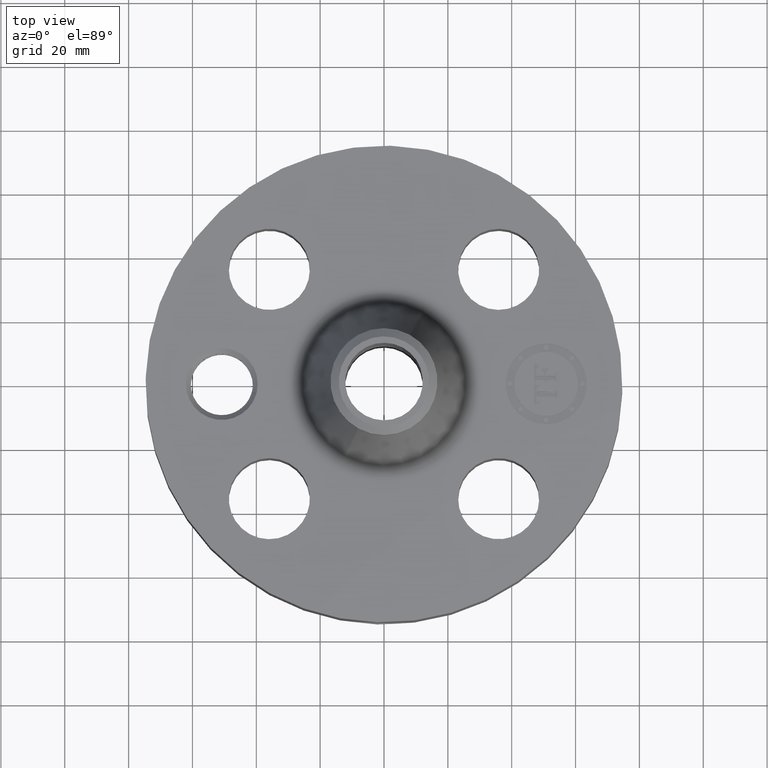
[diagram: clean part render]
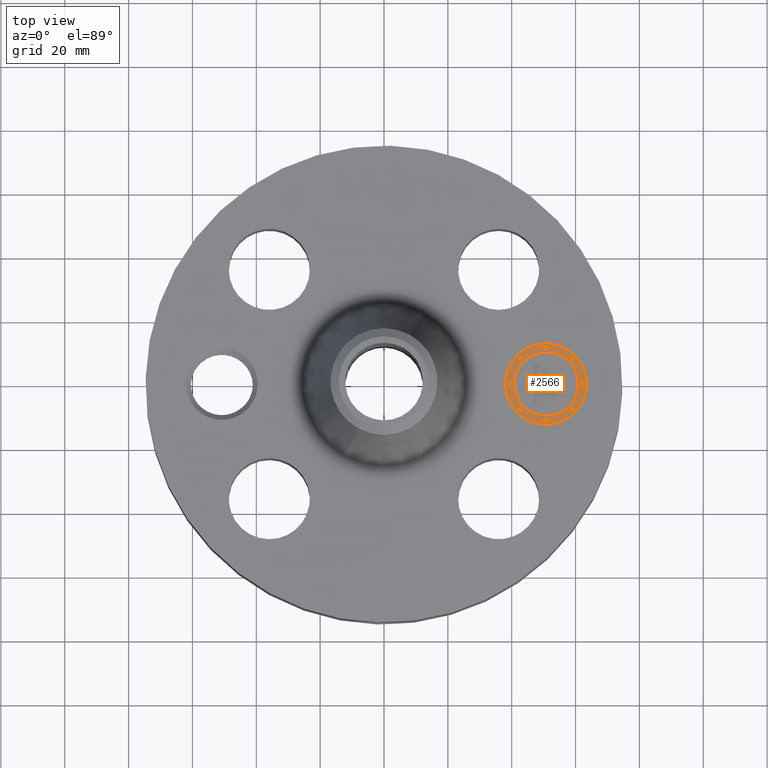
[diagram: same view with one face highlighted and labeled with its STEP entity id]
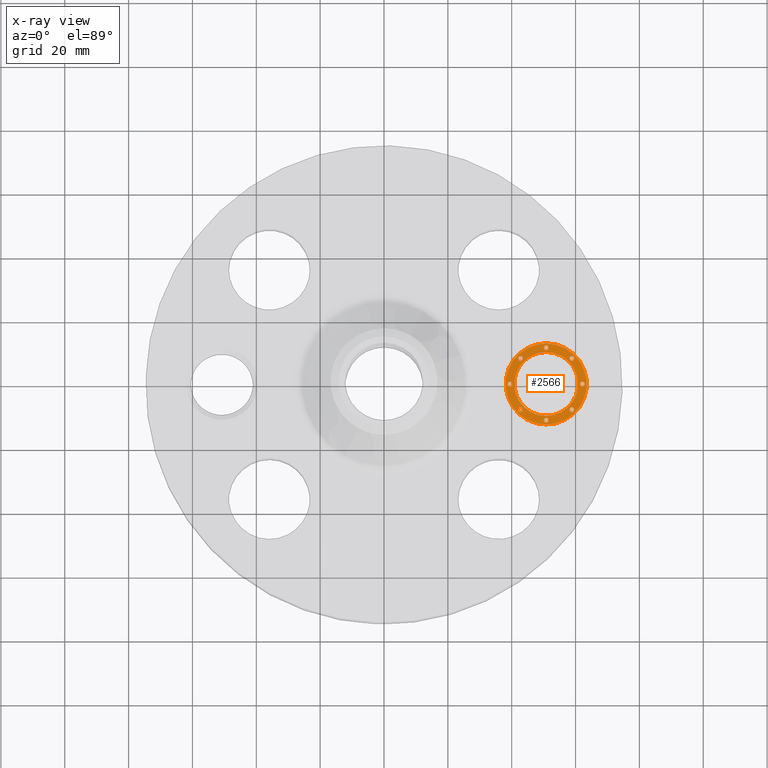
[diagram: x-ray of the same camera — body ghosted, the highlighted face saturated]
A machine part, top view. The second image highlights one B-rep face of the part: STEP entity #2566.
The next image is the same camera in x-ray: the body ghosted, the highlighted face saturated — about 0% of this face is hidden behind the body in this view.
In plain terms, the highlighted planar face has unit normal (0, 0, 1).
Its self-contained STEP definition (entity closure, byte-faithful):
#1811=AXIS2_PLACEMENT_3D('Circle Axis2P3D',#1809,#1810,$) ;
#1838=AXIS2_PLACEMENT_3D('Circle Axis2P3D',#1836,#1837,$) ;
#2398=AXIS2_PLACEMENT_3D('Plane Axis2P3D',#2395,#2396,#2397) ;
#2406=AXIS2_PLACEMENT_3D('Circle Axis2P3D',#2404,#2405,$) ;
#2415=AXIS2_PLACEMENT_3D('Circle Axis2P3D',#2413,#2414,$) ;
#2424=AXIS2_PLACEMENT_3D('Circle Axis2P3D',#2422,#2423,$) ;
#2433=AXIS2_PLACEMENT_3D('Circle Axis2P3D',#2431,#2432,$) ;
#2442=AXIS2_PLACEMENT_3D('Circle Axis2P3D',#2440,#2441,$) ;
#2451=AXIS2_PLACEMENT_3D('Circle Axis2P3D',#2449,#2450,$) ;
#2460=AXIS2_PLACEMENT_3D('Circle Axis2P3D',#2458,#2459,$) ;
#2469=AXIS2_PLACEMENT_3D('Circle Axis2P3D',#2467,#2468,$) ;
#2478=AXIS2_PLACEMENT_3D('Circle Axis2P3D',#2476,#2477,$) ;
#2487=AXIS2_PLACEMENT_3D('Circle Axis2P3D',#2485,#2486,$) ;
#2496=AXIS2_PLACEMENT_3D('Circle Axis2P3D',#2494,#2495,$) ;
#2505=AXIS2_PLACEMENT_3D('Circle Axis2P3D',#2503,#2504,$) ;
#2514=AXIS2_PLACEMENT_3D('Circle Axis2P3D',#2512,#2513,$) ;
#2523=AXIS2_PLACEMENT_3D('Circle Axis2P3D',#2521,#2522,$) ;
#2532=AXIS2_PLACEMENT_3D('Circle Axis2P3D',#2530,#2531,$) ;
#2541=AXIS2_PLACEMENT_3D('Circle Axis2P3D',#2539,#2540,$) ;
#2550=AXIS2_PLACEMENT_3D('Circle Axis2P3D',#2548,#2549,$) ;
#2559=AXIS2_PLACEMENT_3D('Circle Axis2P3D',#2557,#2558,$) ;
#1806=CARTESIAN_POINT('Vertex',(2.00000000001,-0.499999995002,1.73500000001)) ;
#1809=CARTESIAN_POINT('Axis2P3D Location',(2.00000000001,-1.00137880217E-014,1.73500000001)) ;
#1813=CARTESIAN_POINT('Vertex',(2.00000000001,0.499999995002,1.73500000001)) ;
#1836=CARTESIAN_POINT('Axis2P3D Location',(2.00000000001,-1.00137880217E-014,1.73500000001)) ;
#2395=CARTESIAN_POINT('Axis2P3D Location',(0.,0.,1.73500000001)) ;
#2404=CARTESIAN_POINT('Axis2P3D Location',(2.00000000001,-1.00137880217E-014,1.73500000001)) ;
#2408=CARTESIAN_POINT('Vertex',(2.00000000001,-0.393939390002,1.73500000001)) ;
#2410=CARTESIAN_POINT('Vertex',(2.00000000001,0.393939390002,1.73500000001)) ;
#2413=CARTESIAN_POINT('Axis2P3D Location',(2.00000000001,-1.00137880217E-014,1.73500000001)) ;
#2422=CARTESIAN_POINT('Axis2P3D Location',(1.55303030751,-1.12853390751E-014,1.73500000001)) ;
#2426=CARTESIAN_POINT('Vertex',(1.55303030751,-0.0303030300001,1.73500000001)) ;
#2428=CARTESIAN_POINT('Vertex',(1.55303030751,0.0303030300001,1.73500000001)) ;
#2431=CARTESIAN_POINT('Axis2P3D Location',(1.55303030751,-1.12853390751E-014,1.73500000001)) ;
#2440=CARTESIAN_POINT('Axis2P3D Location',(2.00000000001,0.446969692502,1.73500000001)) ;
#2444=CARTESIAN_POINT('Vertex',(2.00000000001,0.416666662502,1.73500000001)) ;
#2446=CARTESIAN_POINT('Vertex',(2.00000000001,0.477272722502,1.73500000001)) ;
#2449=CARTESIAN_POINT('Axis2P3D Location',(2.00000000001,0.446969692502,1.73500000001)) ;
#2458=CARTESIAN_POINT('Axis2P3D Location',(1.68394469946,0.316055300553,1.73500000001)) ;
#2462=CARTESIAN_POINT('Vertex',(1.68394469946,0.285752270553,1.73500000001)) ;
#2464=CARTESIAN_POINT('Vertex',(1.68394469946,0.346358330553,1.73500000001)) ;
#2467=CARTESIAN_POINT('Axis2P3D Location',(1.68394469946,0.316055300553,1.73500000001)) ;
#2476=CARTESIAN_POINT('Axis2P3D Location',(2.44696969251,1.7127383599E-015,1.73500000001)) ;
#2480=CARTESIAN_POINT('Vertex',(2.44696969251,-0.0303030300001,1.73500000001)) ;
#2482=CARTESIAN_POINT('Vertex',(2.44696969251,0.0303030300001,1.73500000001)) ;
#2485=CARTESIAN_POINT('Axis2P3D Location',(2.44696969251,1.7127383599E-015,1.73500000001)) ;
#2494=CARTESIAN_POINT('Axis2P3D Location',(2.31605530056,0.316055300553,1.73500000001)) ;
#2498=CARTESIAN_POINT('Vertex',(2.31605530056,0.285752270553,1.73500000001)) ;
#2500=CARTESIAN_POINT('Vertex',(2.31605530056,0.346358330553,1.73500000001)) ;
#2503=CARTESIAN_POINT('Axis2P3D Location',(2.31605530056,0.316055300553,1.73500000001)) ;
#2512=CARTESIAN_POINT('Axis2P3D Location',(2.00000000001,-0.446969692502,1.73500000001)) ;
#2516=CARTESIAN_POINT('Vertex',(2.00000000001,-0.416666662502,1.73500000001)) ;
#2518=CARTESIAN_POINT('Vertex',(2.00000000001,-0.477272722502,1.73500000001)) ;
#2521=CARTESIAN_POINT('Axis2P3D Location',(2.00000000001,-0.446969692502,1.73500000001)) ;
#2530=CARTESIAN_POINT('Axis2P3D Location',(1.68394469946,-0.316055300553,1.73500000001)) ;
#2534=CARTESIAN_POINT('Vertex',(1.68394469946,-0.285752270553,1.73500000001)) ;
#2536=CARTESIAN_POINT('Vertex',(1.68394469946,-0.346358330553,1.73500000001)) ;
#2539=CARTESIAN_POINT('Axis2P3D Location',(1.68394469946,-0.316055300553,1.73500000001)) ;
#2548=CARTESIAN_POINT('Axis2P3D Location',(2.31605530056,-0.316055300553,1.73500000001)) ;
#2552=CARTESIAN_POINT('Vertex',(2.31605530056,-0.285752270553,1.73500000001)) ;
#2554=CARTESIAN_POINT('Vertex',(2.31605530056,-0.346358330553,1.73500000001)) ;
#2557=CARTESIAN_POINT('Axis2P3D Location',(2.31605530056,-0.316055300553,1.73500000001)) ;
#1810=DIRECTION('Axis2P3D Direction',(0.,0.,0.0393700787402)) ;
#1837=DIRECTION('Axis2P3D Direction',(0.,0.,0.0393700787402)) ;
#2396=DIRECTION('Axis2P3D Direction',(0.,0.,0.0393700787402)) ;
#2397=DIRECTION('Axis2P3D XDirection',(0.0393700787402,0.,0.)) ;
#2405=DIRECTION('Axis2P3D Direction',(0.,0.,0.0393700787402)) ;
#2414=DIRECTION('Axis2P3D Direction',(0.,0.,0.0393700787402)) ;
#2423=DIRECTION('Axis2P3D Direction',(0.,0.,0.0393700787402)) ;
#2432=DIRECTION('Axis2P3D Direction',(0.,0.,0.0393700787402)) ;
#2441=DIRECTION('Axis2P3D Direction',(0.,0.,0.0393700787402)) ;
#2450=DIRECTION('Axis2P3D Direction',(0.,0.,0.0393700787402)) ;
#2459=DIRECTION('Axis2P3D Direction',(0.,0.,0.0393700787402)) ;
#2468=DIRECTION('Axis2P3D Direction',(0.,0.,0.0393700787402)) ;
#2477=DIRECTION('Axis2P3D Direction',(0.,0.,0.0393700787402)) ;
#2486=DIRECTION('Axis2P3D Direction',(0.,0.,0.0393700787402)) ;
#2495=DIRECTION('Axis2P3D Direction',(0.,0.,0.0393700787402)) ;
#2504=DIRECTION('Axis2P3D Direction',(0.,0.,0.0393700787402)) ;
#2513=DIRECTION('Axis2P3D Direction',(0.,0.,0.0393700787402)) ;
#2522=DIRECTION('Axis2P3D Direction',(0.,0.,0.0393700787402)) ;
#2531=DIRECTION('Axis2P3D Direction',(0.,0.,0.0393700787402)) ;
#2540=DIRECTION('Axis2P3D Direction',(0.,0.,0.0393700787402)) ;
#2549=DIRECTION('Axis2P3D Direction',(0.,0.,0.0393700787402)) ;
#2558=DIRECTION('Axis2P3D Direction',(0.,0.,0.0393700787402)) ;
#2401=ORIENTED_EDGE('',*,*,#1815,.T.) ;
#2402=ORIENTED_EDGE('',*,*,#1840,.T.) ;
#2419=ORIENTED_EDGE('',*,*,#2412,.F.) ;
#2420=ORIENTED_EDGE('',*,*,#2417,.F.) ;
#2437=ORIENTED_EDGE('',*,*,#2430,.F.) ;
#2438=ORIENTED_EDGE('',*,*,#2435,.F.) ;
#2455=ORIENTED_EDGE('',*,*,#2448,.F.) ;
#2456=ORIENTED_EDGE('',*,*,#2453,.F.) ;
#2473=ORIENTED_EDGE('',*,*,#2466,.F.) ;
#2474=ORIENTED_EDGE('',*,*,#2471,.F.) ;
#2491=ORIENTED_EDGE('',*,*,#2484,.F.) ;
#2492=ORIENTED_EDGE('',*,*,#2489,.F.) ;
#2509=ORIENTED_EDGE('',*,*,#2502,.F.) ;
#2510=ORIENTED_EDGE('',*,*,#2507,.F.) ;
#2527=ORIENTED_EDGE('',*,*,#2520,.F.) ;
#2528=ORIENTED_EDGE('',*,*,#2525,.F.) ;
#2545=ORIENTED_EDGE('',*,*,#2538,.F.) ;
#2546=ORIENTED_EDGE('',*,*,#2543,.F.) ;
#2563=ORIENTED_EDGE('',*,*,#2556,.F.) ;
#2564=ORIENTED_EDGE('',*,*,#2561,.F.) ;
#2421=FACE_BOUND('',#2418,.T.) ;
#2439=FACE_BOUND('',#2436,.T.) ;
#2457=FACE_BOUND('',#2454,.T.) ;
#2475=FACE_BOUND('',#2472,.T.) ;
#2493=FACE_BOUND('',#2490,.T.) ;
#2511=FACE_BOUND('',#2508,.T.) ;
#2529=FACE_BOUND('',#2526,.T.) ;
#2547=FACE_BOUND('',#2544,.T.) ;
#2565=FACE_BOUND('',#2562,.T.) ;
#2566=ADVANCED_FACE('PartBody',(#2403,#2421,#2439,#2457,#2475,#2493,#2511,#2529,#2547,#2565),#2399,.T.) ;
#1812=CIRCLE('generated circle',#1811,0.499999995002) ;
#1839=CIRCLE('generated circle',#1838,0.499999995002) ;
#2407=CIRCLE('generated circle',#2406,0.393939390002) ;
#2416=CIRCLE('generated circle',#2415,0.393939390002) ;
#2425=CIRCLE('generated circle',#2424,0.0303030300001) ;
#2434=CIRCLE('generated circle',#2433,0.0303030300001) ;
#2443=CIRCLE('generated circle',#2442,0.0303030300001) ;
#2452=CIRCLE('generated circle',#2451,0.0303030300001) ;
#2461=CIRCLE('generated circle',#2460,0.0303030300001) ;
#2470=CIRCLE('generated circle',#2469,0.0303030300001) ;
#2479=CIRCLE('generated circle',#2478,0.0303030300001) ;
#2488=CIRCLE('generated circle',#2487,0.0303030300001) ;
#2497=CIRCLE('generated circle',#2496,0.0303030300001) ;
#2506=CIRCLE('generated circle',#2505,0.0303030300001) ;
#2515=CIRCLE('generated circle',#2514,0.0303030300001) ;
#2524=CIRCLE('generated circle',#2523,0.0303030300001) ;
#2533=CIRCLE('generated circle',#2532,0.0303030300001) ;
#2542=CIRCLE('generated circle',#2541,0.0303030300001) ;
#2551=CIRCLE('generated circle',#2550,0.0303030300001) ;
#2560=CIRCLE('generated circle',#2559,0.0303030300001) ;
#1815=EDGE_CURVE('',#1814,#1807,#1812,.T.) ;
#1840=EDGE_CURVE('',#1807,#1814,#1839,.T.) ;
#2412=EDGE_CURVE('',#2409,#2411,#2407,.T.) ;
#2417=EDGE_CURVE('',#2411,#2409,#2416,.T.) ;
#2430=EDGE_CURVE('',#2427,#2429,#2425,.T.) ;
#2435=EDGE_CURVE('',#2429,#2427,#2434,.T.) ;
#2448=EDGE_CURVE('',#2445,#2447,#2443,.T.) ;
#2453=EDGE_CURVE('',#2447,#2445,#2452,.T.) ;
#2466=EDGE_CURVE('',#2463,#2465,#2461,.T.) ;
#2471=EDGE_CURVE('',#2465,#2463,#2470,.T.) ;
#2484=EDGE_CURVE('',#2481,#2483,#2479,.T.) ;
#2489=EDGE_CURVE('',#2483,#2481,#2488,.T.) ;
#2502=EDGE_CURVE('',#2499,#2501,#2497,.T.) ;
#2507=EDGE_CURVE('',#2501,#2499,#2506,.T.) ;
#2520=EDGE_CURVE('',#2517,#2519,#2515,.T.) ;
#2525=EDGE_CURVE('',#2519,#2517,#2524,.T.) ;
#2538=EDGE_CURVE('',#2535,#2537,#2533,.T.) ;
#2543=EDGE_CURVE('',#2537,#2535,#2542,.T.) ;
#2556=EDGE_CURVE('',#2553,#2555,#2551,.T.) ;
#2561=EDGE_CURVE('',#2555,#2553,#2560,.T.) ;
#2400=EDGE_LOOP('',(#2401,#2402)) ;
#2418=EDGE_LOOP('',(#2419,#2420)) ;
#2436=EDGE_LOOP('',(#2437,#2438)) ;
#2454=EDGE_LOOP('',(#2455,#2456)) ;
#2472=EDGE_LOOP('',(#2473,#2474)) ;
#2490=EDGE_LOOP('',(#2491,#2492)) ;
#2508=EDGE_LOOP('',(#2509,#2510)) ;
#2526=EDGE_LOOP('',(#2527,#2528)) ;
#2544=EDGE_LOOP('',(#2545,#2546)) ;
#2562=EDGE_LOOP('',(#2563,#2564)) ;
#2403=FACE_OUTER_BOUND('',#2400,.T.) ;
#2399=PLANE('',#2398) ;
#1807=VERTEX_POINT('',#1806) ;
#1814=VERTEX_POINT('',#1813) ;
#2409=VERTEX_POINT('',#2408) ;
#2411=VERTEX_POINT('',#2410) ;
#2427=VERTEX_POINT('',#2426) ;
#2429=VERTEX_POINT('',#2428) ;
#2445=VERTEX_POINT('',#2444) ;
#2447=VERTEX_POINT('',#2446) ;
#2463=VERTEX_POINT('',#2462) ;
#2465=VERTEX_POINT('',#2464) ;
#2481=VERTEX_POINT('',#2480) ;
#2483=VERTEX_POINT('',#2482) ;
#2499=VERTEX_POINT('',#2498) ;
#2501=VERTEX_POINT('',#2500) ;
#2517=VERTEX_POINT('',#2516) ;
#2519=VERTEX_POINT('',#2518) ;
#2535=VERTEX_POINT('',#2534) ;
#2537=VERTEX_POINT('',#2536) ;
#2553=VERTEX_POINT('',#2552) ;
#2555=VERTEX_POINT('',#2554) ;